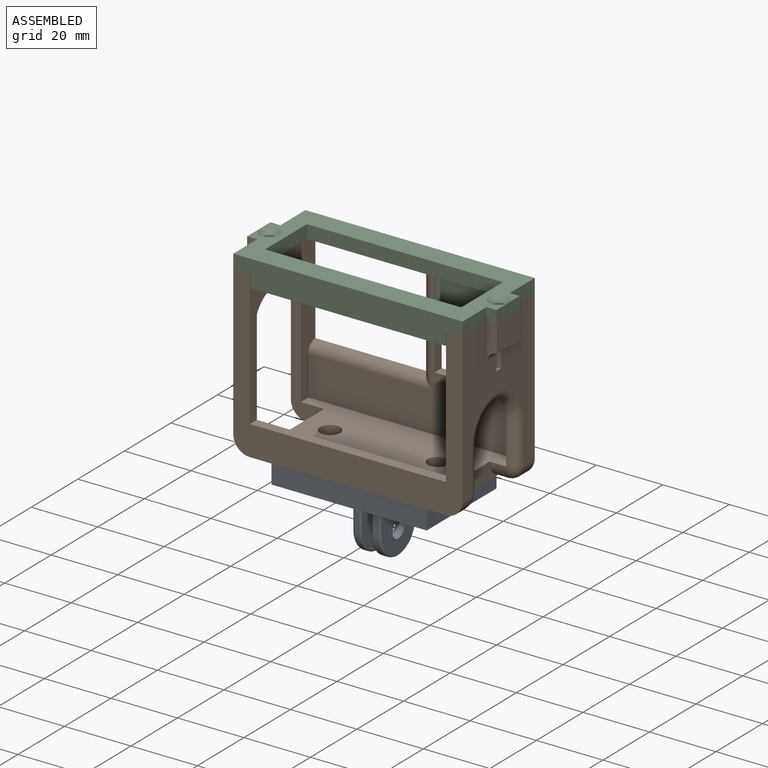
[diagram: assembled view]
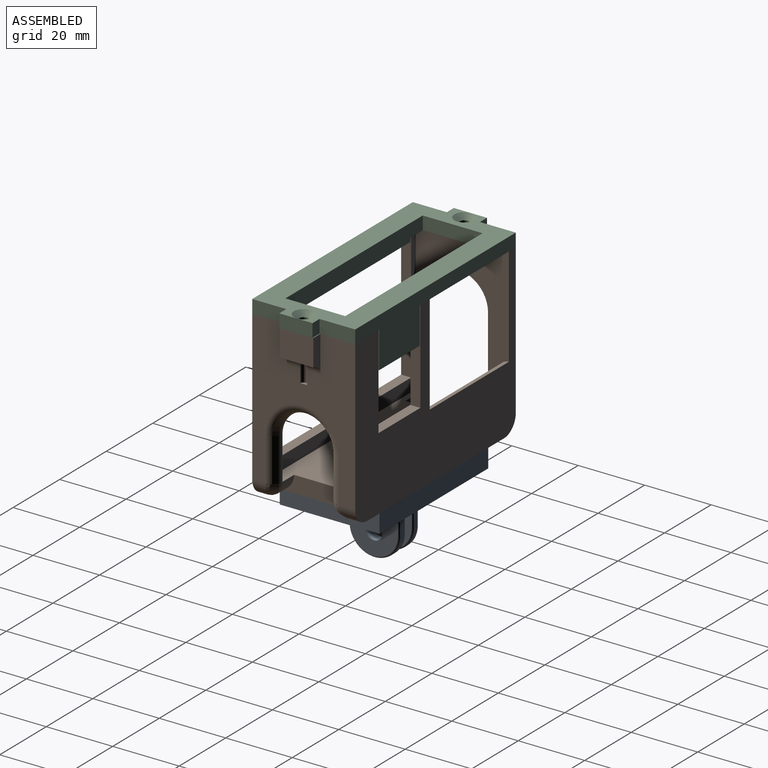
[diagram: assembled view, second angle]
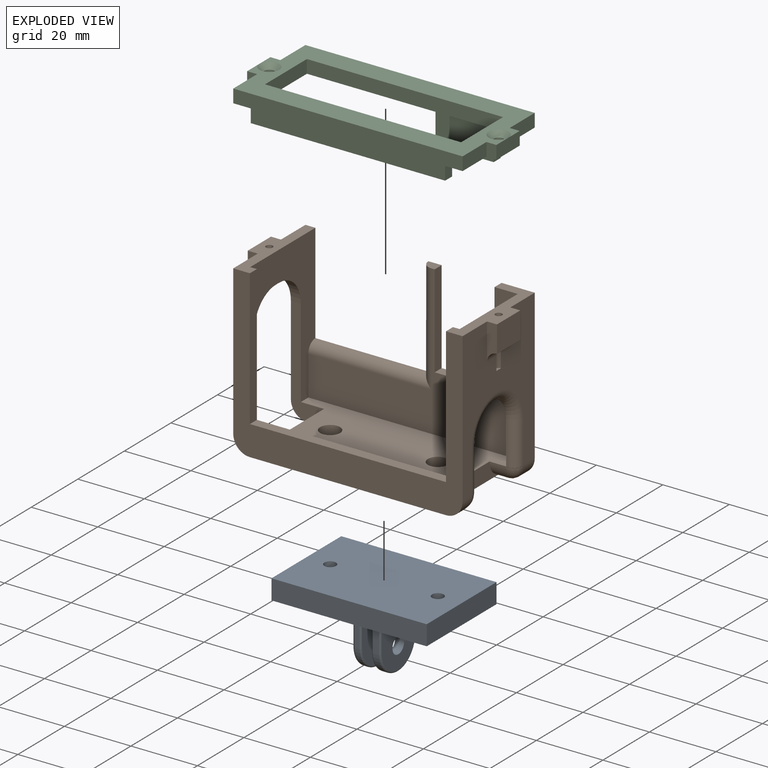
[diagram: exploded view]
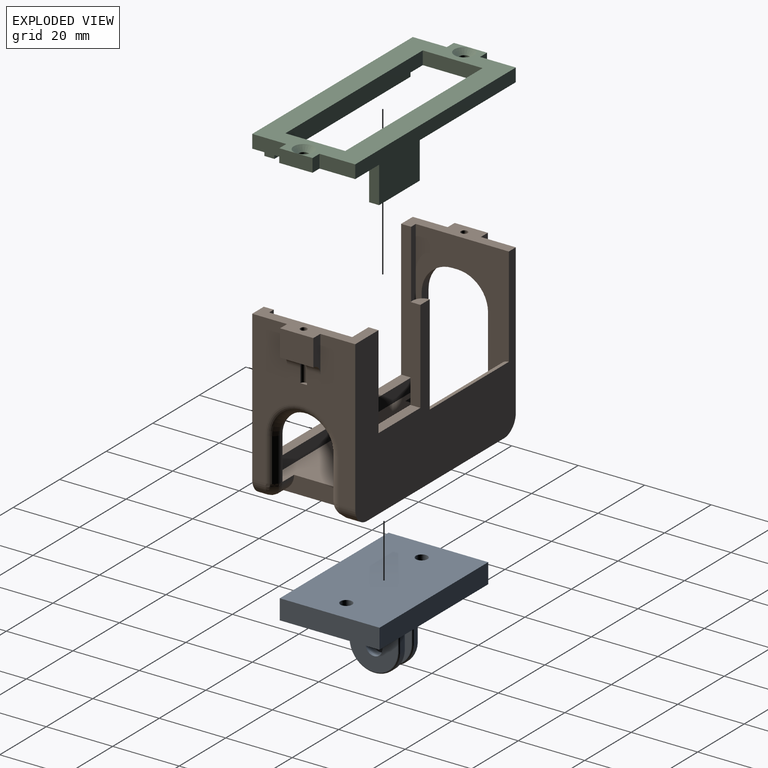
[diagram: exploded view, second angle]
ASSEMBLY  parts=3 mates=2
PART A: 46 faces, bbox 30x46.7x24.3 mm
  f0: cylinder r=1.75mm len=4.4mm, axis (0,0,1), area 48.4mm2, adj f29,f45
  f1: cylinder r=1.75mm len=4.4mm, axis (0,0,1), area 48.4mm2, adj f29,f38
  f2: plane 10.5x1.25mm, normal (-1,0,0), area 13.1mm2, adj f5,f8,f11,f14
  f3: plane 10.5x1.25mm, normal (1,0,0), area 13.1mm2, adj f5,f10,f13,f14
  f4: cylinder r=2.5mm len=5mm, axis (0,1,0), area 43.2mm2, adj f6,f7
  f5: cylinder r=7.61mm len=15.2mm, axis (0,1,0), area 28.9mm2, adj f2,f3,f9,f12
  f6: plane 17.2x14.2mm, normal (0,-1,0), area 203.1mm2, adj f4,f11,f12,f13,f14
  f7: plane 16.7x13.2mm, normal (0,1,0), area 182.2mm2, adj f4,f8,f9,f10,f14
  f8: cylinder r=1mm len=10.5mm, axis (0,0,-1), area 16.5mm2, adj f2,f7,f9,f14
  f9: torus R=6.61mm, axis (0,-1,0), area 34.5mm2, adj f5,f7,f8,f10
  f10: cylinder r=1mm len=10.5mm, axis (0,0,1), area 16.5mm2, adj f3,f7,f9,f14
  f11: cylinder r=0.5mm len=10.5mm, axis (0,0,1), area 8.2mm2, adj f2,f6,f12,f14
  f12: torus R=7.11mm, axis (0,-1,0), area 17.7mm2, adj f5,f6,f11,f13
  f13: cylinder r=0.5mm len=10.5mm, axis (0,0,-1), area 8.2mm2, adj f3,f6,f12,f14
  f14: plane 46.7x30mm, normal (0,0,1), area 1255.8mm2, adj f2,f3,f6,f7,f8,f10,f11,f13
  f15: plane 10.5x1.75mm, normal (-1,0,0), area 18.4mm2, adj f14,f18,f21,f24
  f16: plane 10.5x1.75mm, normal (1,0,0), area 18.4mm2, adj f14,f18,f23,f26
  f17: cylinder r=2.5mm len=5mm, axis (0,1,0), area 43.2mm2, adj f19,f20
  f18: cylinder r=7.61mm len=15.2mm, axis (0,1,0), area 40.4mm2, adj f15,f16,f22,f25
  f19: plane 17.2x14.2mm, normal (0,-1,0), area 203.1mm2, adj f14,f17,f24,f25,f26
  f20: plane 17.2x14.2mm, normal (0,1,0), area 203.1mm2, adj f14,f17,f21,f22,f23
  f21: cylinder r=0.5mm len=10.5mm, axis (0,0,-1), area 8.2mm2, adj f14,f15,f20,f22
  f22: torus R=7.11mm, axis (0,-1,0), area 17.7mm2, adj f18,f20,f21,f23
  f23: cylinder r=0.5mm len=10.5mm, axis (0,0,1), area 8.2mm2, adj f14,f16,f20,f22
  f24: cylinder r=0.5mm len=10.5mm, axis (0,0,1), area 8.2mm2, adj f14,f15,f19,f25
  f25: torus R=7.11mm, axis (0,-1,0), area 17.7mm2, adj f18,f19,f24,f26
  f26: cylinder r=0.5mm len=10.5mm, axis (0,0,-1), area 8.2mm2, adj f14,f16,f19,f25
  f27: plane 30x6mm, normal (0,1,0), area 180mm2, adj f14,f29,f30,f31
  f28: plane 30x6mm, normal (0,-1,0), area 180mm2, adj f14,f29,f30,f31
  f29: plane 46.7x30mm, normal (0,0,-1), area 1381.8mm2, adj f0,f1,f27,f28,f30,f31
  f30: plane 46.7x6mm, normal (1,0,0), area 280.2mm2, adj f14,f27,f28,f29
  f31: plane 46.7x6mm, normal (-1,0,0), area 280.2mm2, adj f14,f27,f28,f29
  f32: plane 3.46x1.6mm, normal (0,-1,0), area 5.5mm2, adj f14,f33,f37,f38
  f33: plane 3x1.73mm, normal (0.87,-0.5,0), area 5.5mm2, adj f14,f32,f34,f38
  f34: plane 3x1.73mm, normal (0.87,0.5,0), area 5.5mm2, adj f14,f33,f35,f38
  f35: plane 3.46x1.6mm, normal (0,1,0), area 5.5mm2, adj f14,f34,f36,f38
  f36: plane 3x1.73mm, normal (-0.87,0.5,0), area 5.5mm2, adj f14,f35,f37,f38
  f37: plane 3x1.73mm, normal (-0.87,-0.5,0), area 5.5mm2, adj f14,f32,f36,f38
  f38: plane 6.93x6mm, normal (0,0,1), area 21.6mm2, adj f1,f32,f33,f34,f35,f36,f37
  f39: plane 3.46x1.6mm, normal (0,-1,0), area 5.5mm2, adj f14,f40,f44,f45
  f40: plane 3x1.73mm, normal (0.87,-0.5,0), area 5.5mm2, adj f14,f39,f41,f45
  f41: plane 3x1.73mm, normal (0.87,0.5,0), area 5.5mm2, adj f14,f40,f42,f45
  f42: plane 3.46x1.6mm, normal (0,1,0), area 5.5mm2, adj f14,f41,f43,f45
  f43: plane 3x1.73mm, normal (-0.87,0.5,0), area 5.5mm2, adj f14,f42,f44,f45
  f44: plane 3x1.73mm, normal (-0.87,-0.5,0), area 5.5mm2, adj f14,f39,f43,f45
  f45: plane 6.93x6mm, normal (0,0,1), area 21.6mm2, adj f0,f39,f40,f41,f42,f43,f44
PART B: 57 faces, bbox 75x31x50 mm
  f0: cylinder r=1.75mm len=3.5mm, axis (0,0,1), area 22mm2, adj f13,f48
  f1: cylinder r=1.75mm len=3.5mm, axis (0,0,1), area 22mm2, adj f13,f46
  f2: plane 31x13mm, normal (0,0,1), area 146.9mm2, adj f6,f9,f10,f11,f12,f15,f16,f20
  f3: plane 45x14mm, normal (-1,0,0), area 283.9mm2, adj f7,f11,f26,f29,f31,f33,f55
  f4: plane 45x14.5mm, normal (-1,0,0), area 337.8mm2, adj f7,f9,f25,f28,f31,f32,f42,f56
  f5: plane 63x25mm, normal (0,0,1), area 1298.5mm2, adj f6,f10,f14,f15,f19,f25,f26,f27
  f6: plane 45x25mm, normal (-1,0,0), area 816.5mm2, adj f2,f5,f10,f15,f37,f38,f39
  f7: plane 31x8mm, normal (0,0,1), area 125.9mm2, adj f3,f4,f9,f11,f14,f15,f28,f29
  f8: plane 4x3mm, normal (0,0,1), area 10.1mm2, adj f9,f10,f18,f41
  f9: plane 69x50mm, normal (0,1,0), area 1915.3mm2, adj f2,f4,f7,f8,f12,f13,f14,f16
  f10: plane 63x45mm, normal (0,-1,0), area 1110mm2, adj f2,f5,f6,f8,f14,f16,f17,f18
  f11: plane 69x50mm, normal (0,-1,0), area 1020.3mm2, adj f2,f3,f7,f12,f13,f34,f35,f36
  f12: plane 45x31mm, normal (1,0,0), area 800.9mm2, adj f2,f9,f11,f20,f21,f23,f37,f38
  f13: plane 59x31mm, normal (0,0,-1), area 1631.8mm2, adj f0,f1,f9,f11,f19,f25,f26,f27
  f14: plane 45x28mm, normal (1,0,0), area 533.7mm2, adj f5,f7,f9,f10,f15,f24,f25,f26
  f15: plane 63x45mm, normal (0,1,0), area 416mm2, adj f2,f5,f6,f7,f14,f34,f35,f36
  f16: plane 28x3mm, normal (-1,0,0), area 84mm2, adj f2,f9,f10,f17
  f17: plane 18x3mm, normal (0,0,1), area 54mm2, adj f9,f10,f16,f18
  f18: plane 28x3mm, normal (1,0,0), area 84mm2, adj f8,f9,f10,f17
  f19: plane 26x5mm, normal (1,0,0), area 90.7mm2, adj f5,f13,f51,f54
  f20: plane 11x3mm, normal (0,-1,0), area 25.9mm2, adj f2,f12,f22,f23
  f21: plane 11x3mm, normal (0,1,0), area 25.9mm2, adj f2,f12,f22,f23
  f22: plane 10x8mm, normal (1,0,0), area 80mm2, adj f2,f20,f21,f23
  f23: cylinder r=3mm len=10mm, axis (0,-1,0), area 42.7mm2, adj f12,f20,f21,f22,f44
  f24: plane 3x1.5mm, normal (0,0,-1), area 3.7mm2, adj f14,f31,f32,f33,f42
  f25: plane 31.75x10mm, normal (0,-1,0), area 124.9mm2, adj f4,f5,f13,f14,f27,f32,f56
  f26: plane 31.75x10mm, normal (0,1,0), area 124.9mm2, adj f3,f5,f13,f14,f27,f33,f55
  f27: plane 20x5mm, normal (-1,0,0), area 100mm2, adj f5,f13,f25,f26
  f28: plane 9x3mm, normal (0,1,0), area 19.9mm2, adj f4,f7,f30,f31
  f29: plane 9x3mm, normal (0,-1,0), area 19.9mm2, adj f3,f7,f30,f31
  f30: plane 10x6mm, normal (-1,0,0), area 60mm2, adj f7,f28,f29,f31
  f31: cylinder r=3mm len=10mm, axis (0,-1,0), area 42.7mm2, adj f3,f4,f24,f28,f29,f30,f42
  f32: cylinder r=9.25mm len=9.25mm, axis (-1,0,0), area 42.8mm2, adj f4,f14,f24,f25,f42
  f33: cylinder r=9.25mm len=9.25mm, axis (1,0,0), area 43.6mm2, adj f3,f14,f24,f26
  f34: plane 41x3mm, normal (1,0,0), area 123mm2, adj f7,f11,f15,f35
  f35: plane 59x3mm, normal (0,0,1), area 177mm2, adj f11,f15,f34,f36
  f36: plane 41x3mm, normal (-1,0,0), area 123mm2, adj f2,f11,f15,f35
  f37: cylinder r=3mm len=13mm, axis (0,0,1), area 61.3mm2, adj f6,f12,f38,f53
  f38: torus R=11mm, axis (-1,0,0), area 134.6mm2, adj f6,f12,f37,f39
  f39: cylinder r=3mm len=13mm, axis (0,0,-1), area 61.3mm2, adj f6,f12,f38,f50
  f40: cylinder r=3mm len=37mm, axis (-1,0,0), area 165.4mm2, adj f9,f10,f14,f41
  f41: cylinder r=3mm len=33mm, axis (0,0,-1), area 146.5mm2, adj f8,f9,f10,f40
  f42: cylinder r=1mm len=9.05mm, axis (0,0,1), area 51.1mm2, adj f4,f7,f24,f31,f32
  f43: plane 2x1mm, normal (0,0,1), area 1.6mm2, adj f12,f44
  f44: cylinder r=1mm len=15mm, axis (0,0,1), area 76.2mm2, adj f2,f12,f23,f43
  f45: cylinder r=3mm len=6mm, axis (0,0,1), area 56.5mm2, adj f5,f46
  f46: plane 6x6mm, normal (0,0,1), area 18.7mm2, adj f1,f45
  f47: cylinder r=3mm len=6mm, axis (0,0,1), area 56.5mm2, adj f5,f48
  f48: plane 6x6mm, normal (0,0,1), area 18.7mm2, adj f0,f47
  f49: cylinder r=5mm len=5mm, axis (0,-1,0), area 25.7mm2, adj f11,f12,f13,f50
  f50: bspline ~5.26x5mm, area 24.5mm2, adj f39,f49,f51
  f51: cylinder r=5mm len=5mm, axis (1,0,0), area 33.6mm2, adj f5,f13,f19,f50
  f52: cylinder r=5mm len=5mm, axis (0,-1,0), area 33.6mm2, adj f9,f12,f13,f53
  f53: bspline ~5.26x5mm, area 24.5mm2, adj f37,f52,f54
  f54: cylinder r=5mm len=5mm, axis (-1,0,0), area 33.6mm2, adj f5,f13,f19,f53
  f55: cylinder r=5mm len=5mm, axis (0,1,0), area 37.3mm2, adj f3,f11,f13,f26
  f56: cylinder r=5mm len=6.25mm, axis (0,1,0), area 49.1mm2, adj f4,f9,f13,f25
PART C: 30 faces, bbox 75x31x15 mm
  f0: plane 18x4mm, normal (-1,0,0), area 72mm2, adj f1,f15,f18,f19
  f1: plane 59x4mm, normal (0,1,0), area 236mm2, adj f0,f2,f18,f19
  f2: plane 18x4mm, normal (1,0,0), area 72mm2, adj f1,f15,f18,f19
  f3: plane 10.75x4mm, normal (1,0,0), area 43mm2, adj f4,f14,f18,f19
  f4: plane 4x3mm, normal (0,-1,0), area 12mm2, adj f3,f5,f18,f19
  f5: plane 10x4mm, normal (1,0,0), area 40mm2, adj f4,f6,f18,f19
  f6: plane 4x3mm, normal (0,1,0), area 12mm2, adj f5,f7,f18,f19
  f7: plane 10.25x4mm, normal (1,0,0), area 41mm2, adj f6,f8,f18,f19
  f8: plane 69x8mm, normal (0,1,0), area 510mm2, adj f7,f9,f18,f19,f24,f26,f27
  f9: plane 10.25x4mm, normal (-1,0,0), area 41mm2, adj f8,f10,f18,f19
  f10: plane 4x3mm, normal (0,1,0), area 12mm2, adj f9,f11,f18,f19
  f11: plane 10x4mm, normal (-1,0,0), area 40mm2, adj f10,f12,f18,f19
  f12: plane 4x3mm, normal (0,-1,0), area 12mm2, adj f11,f13,f18,f19
  f13: plane 10.75x4mm, normal (-1,0,0), area 43mm2, adj f12,f14,f18,f19
  f14: plane 69x15mm, normal (0,-1,0), area 468.5mm2, adj f3,f13,f18,f19,f20,f21,f23
  f15: plane 59x4mm, normal (0,-1,0), area 236mm2, adj f0,f2,f18,f19
  f16: cylinder r=1.5mm len=3mm, axis (0,0,-1), area 23.6mm2, adj f18,f28
  f17: cylinder r=1.5mm len=3mm, axis (0,0,-1), area 23.6mm2, adj f18,f29
  f18: plane 75x31mm, normal (0,0,1), area 894.9mm2, adj f0,f1,f2,f3,f4,f5,f6,f7
  f19: plane 75x31mm, normal (0,0,-1), area 1080.5mm2, adj f0,f1,f2,f3,f4,f5,f6,f7
  f20: plane 11x3mm, normal (-1,0,0), area 33mm2, adj f14,f18,f22,f23
  f21: plane 11x3mm, normal (1,0,0), area 33mm2, adj f14,f18,f22,f23
  f22: plane 17.5x11mm, normal (0,1,0), area 192.5mm2, adj f18,f20,f21,f23
  f23: plane 17.5x3mm, normal (0,0,1), area 52.5mm2, adj f14,f20,f21,f22
  f24: plane 4x3mm, normal (-1,0,0), area 12mm2, adj f8,f18,f25,f27
  f25: plane 58.5x4mm, normal (0,-1,0), area 234mm2, adj f18,f24,f26,f27
  f26: plane 4x3mm, normal (1,0,0), area 12mm2, adj f8,f18,f25,f27
  f27: plane 58.5x3mm, normal (0,0,1), area 175.5mm2, adj f8,f24,f25,f26
  f28: cone r=3mm half-angle=45deg, axis (0,0,-1), area 30mm2, adj f16,f19
  f29: cone r=3mm half-angle=45deg, axis (0,0,-1), area 30mm2, adj f17,f19
PLACE A rot(axis=(0.71,-0.71,0),180deg) t=(2.5,10.41,-21.31)mm
PLACE B t=(6.85,10.41,-10.31)mm
PLACE C rot(axis=(1,0,0),180deg) t=(6.85,10.41,38.69)mm
MATE fastened C.f17 <-> B.f44  axis (0,0,-1) through (41.35,10.41,34.69)mm
MATE fastened A.f0 <-> B.f0  axis (0,0,1) through (-9.35,10.41,-15.31)mm
